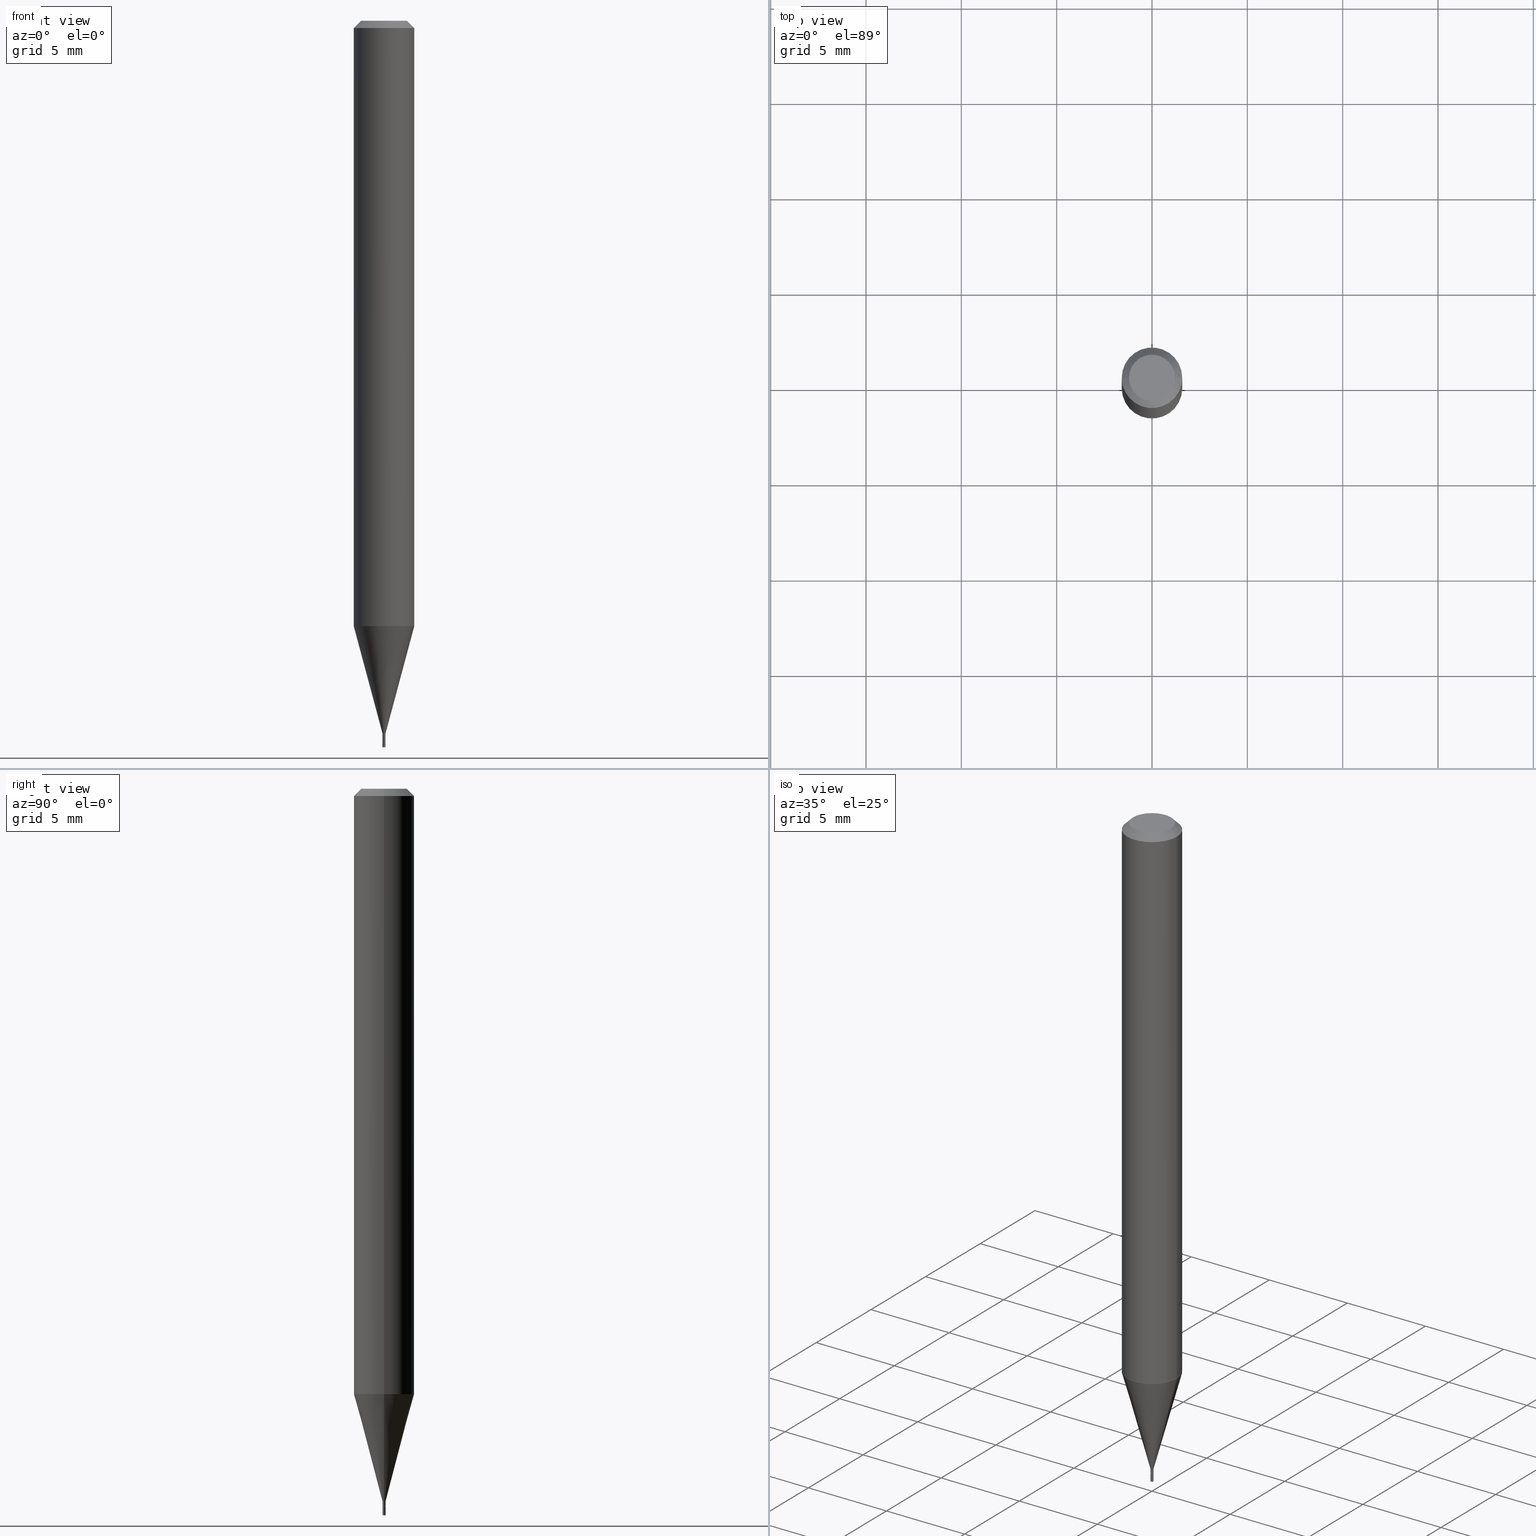
[diagram: canonical four-view strip — front | top / right | iso, engineering-drawing reading convention]
A machine part, canonical four-view strip (front | top / right | iso — engineering-drawing reading convention). The complete STEP part file that produces these views, byte-faithful:
ISO-10303-21;
HEADER;
FILE_DESCRIPTION (( 'STEP AP203' ),
    '1' );
FILE_NAME ('02276.STEP',
    '2024-03-18T19:59:50',
    ( '' ),
    ( '' ),
    'SwSTEP 2.0',
    'SolidWorks 2023',
    '' );
FILE_SCHEMA (( 'CONFIG_CONTROL_DESIGN' ));
ENDSEC;

DATA;
#1 = EDGE_LOOP ( 'NONE', ( #405, #168, #66, #163 ) ) ;
#2 = DIRECTION ( 'NONE',  ( -2.445468806185136597E-29, 3.491481338843145583E-15, 1.000000000000000000 ) ) ;
#3 = FACE_OUTER_BOUND ( 'NONE', #308, .T. ) ;
#4 = LOCAL_TIME ( 15, 59, 50.00000000000000000, #103 ) ;
#5 = CARTESIAN_POINT ( 'NONE',  ( 3.622962036363280209E-29, -5.172629603496120967E-15, -1.481500000000000261 ) ) ;
#6 = UNCERTAINTY_MEASURE_WITH_UNIT (LENGTH_MEASURE( 1.000000000000000082E-05 ), #167, 'distance_accuracy_value', 'NONE');
#7 = DIRECTION ( 'NONE',  ( -2.445468806185136597E-29, 3.491481338843145583E-15, 1.000000000000000000 ) ) ;
#8 = LINE ( 'NONE', #77, #256 ) ;
#9 = APPLICATION_CONTEXT ( 'configuration controlled 3d designs of mechanical parts and assemblies' ) ;
#10 = CC_DESIGN_PERSON_AND_ORGANIZATION_ASSIGNMENT ( #357, #68, ( #120 ) ) ;
#11 = EDGE_CURVE ( 'NONE', #344, #462, #376, .T. ) ;
#12 = ORIENTED_EDGE ( 'NONE', *, *, #11, .T. ) ;
#13 = PRODUCT ( '02276', '02276', '', ( #382 ) ) ;
#14 = CARTESIAN_POINT ( 'NONE',  ( 0.000000000000000000, 0.000000000000000000, 0.000000000000000000 ) ) ;
#15 = ORIENTED_EDGE ( 'NONE', *, *, #134, .F. ) ;
#16 = AXIS2_PLACEMENT_3D ( 'NONE', #187, #296, #111 ) ;
#17 = EDGE_CURVE ( 'NONE', #451, #407, #268, .T. ) ;
#18 = DIRECTION ( 'NONE',  ( 0.7071067811865645591, -2.468850131082435343E-15, 0.7071067811865304753 ) ) ;
#19 = AXIS2_PLACEMENT_3D ( 'NONE', #359, #230, #428 ) ;
#20 = ORIENTED_EDGE ( 'NONE', *, *, #153, .T. ) ;
#21 = DIRECTION ( 'NONE',  ( -0.7071067811864628627, 2.468850131081369986E-15, -0.7071067811866321717 ) ) ;
#22 = ORIENTED_EDGE ( 'NONE', *, *, #401, .T. ) ;
#23 = AXIS2_PLACEMENT_3D ( 'NONE', #14, #125, #164 ) ;
#24 = ADVANCED_FACE ( 'NONE', ( #455 ), #362, .T. ) ;
#25 = EDGE_LOOP ( 'NONE', ( #302, #61, #341, #94 ) ) ;
#26 = CALENDAR_DATE ( 2024, 18, 3 ) ;
#27 = CARTESIAN_POINT ( 'NONE',  ( -0.003000000000000000062, -5.184482394142328088E-15, -1.482000000000000206 ) ) ;
#28 = CC_DESIGN_PERSON_AND_ORGANIZATION_ASSIGNMENT ( #387, #390, ( #342 ) ) ;
#29 = PERSON_AND_ORGANIZATION ( #430, #420 ) ;
#30 = CARTESIAN_POINT ( 'NONE',  ( 0.002999999999999922434, -2.094888803305825853E-17, 1.462853032738742955E-31 ) ) ;
#31 = DIRECTION ( 'NONE',  ( 1.000000000000000000, 0.000000000000000000, 0.000000000000000000 ) ) ;
#32 = CARTESIAN_POINT ( 'NONE',  ( 3.624184770766373010E-29, -5.174375344165542471E-15, -1.482000000000000206 ) ) ;
#33 = APPROVAL_DATE_TIME ( #347, #220 ) ;
#34 = APPROVAL ( #133, 'UNSPECIFIED' ) ;
#35 = CYLINDRICAL_SURFACE ( 'NONE', #202, 0.002999999999999922434 ) ;
#36 = PERSON_AND_ORGANIZATION_ROLE ( 'creator' ) ;
#37 = DIRECTION ( 'NONE',  ( -0.7071067811865645591, 7.493145998870415691E-15, 0.7071067811865304753 ) ) ;
#38 = APPLICATION_CONTEXT ( 'configuration controlled 3d designs of mechanical parts and assemblies' ) ;
#39 = CC_DESIGN_APPROVAL ( #34, ( #120 ) ) ;
#40 = DIRECTION ( 'NONE',  ( -2.438088387897960049E-29, 3.491481338843145188E-15, 1.000000000000000000 ) ) ;
#41 = CARTESIAN_POINT ( 'NONE',  ( 3.624184770766373010E-29, -5.174375344165542471E-15, -1.482000000000000206 ) ) ;
#42 = AXIS2_PLACEMENT_3D ( 'NONE', #115, #261, #45 ) ;
#43 = CYLINDRICAL_SURFACE ( 'NONE', #19, 0.002999999999999922434 ) ;
#44 = AXIS2_PLACEMENT_3D ( 'NONE', #441, #408, #264 ) ;
#45 = DIRECTION ( 'NONE',  ( 1.000000000000000000, -6.982962677686266711E-15, 0.000000000000000000 ) ) ;
#46 = CARTESIAN_POINT ( 'NONE',  ( 3.624184770766373010E-29, -5.174375344165542471E-15, -1.482000000000000206 ) ) ;
#47 = EDGE_CURVE ( 'NONE', #272, #311, #346, .T. ) ;
#48 = AXIS2_PLACEMENT_3D ( 'NONE', #221, #425, #283 ) ;
#49 = ORIENTED_EDGE ( 'NONE', *, *, #423, .F. ) ;
#50 = DIRECTION ( 'NONE',  ( 1.000000000000000000, -6.982962677686266711E-15, 0.000000000000000000 ) ) ;
#51 = CC_DESIGN_APPROVAL ( #220, ( #112 ) ) ;
#52 = ORIENTED_EDGE ( 'NONE', *, *, #174, .F. ) ;
#53 = ORIENTED_EDGE ( 'NONE', *, *, #174, .T. ) ;
#54 = DIRECTION ( 'NONE',  ( 2.438088387897960049E-29, -3.491481338843145188E-15, -1.000000000000000000 ) ) ;
#55 = ORIENTED_EDGE ( 'NONE', *, *, #453, .T. ) ;
#56 = DIRECTION ( 'NONE',  ( 1.000000000000000000, -6.982962677686266711E-15, 4.876176775795935793E-29 ) ) ;
#57 = CIRCLE ( 'NONE', #377, 0.002999999999999922000 ) ;
#58 = ORIENTED_EDGE ( 'NONE', *, *, #117, .T. ) ;
#59 = ADVANCED_FACE ( 'NONE', ( #319 ), #422, .F. ) ;
#60 = AXIS2_PLACEMENT_3D ( 'NONE', #41, #7, #228 ) ;
#61 = ORIENTED_EDGE ( 'NONE', *, *, #95, .T. ) ;
#62 = ADVANCED_BREP_SHAPE_REPRESENTATION ( '02276', ( #100, #260, #214 ), #137 ) ;
#63 = CARTESIAN_POINT ( 'NONE',  ( 3.599730082704520905E-29, -5.139460530777110821E-15, -1.471999999999999975 ) ) ;
#64 = ORIENTED_EDGE ( 'NONE', *, *, #423, .T. ) ;
#65 = COORDINATED_UNIVERSAL_TIME_OFFSET ( 5, 0, .BEHIND. ) ;
#66 = ORIENTED_EDGE ( 'NONE', *, *, #275, .T. ) ;
#67 = ADVANCED_FACE ( 'NONE', ( #458 ), #35, .T. ) ;
#68 = PERSON_AND_ORGANIZATION_ROLE ( 'classification_officer' ) ;
#69 = DIRECTION ( 'NONE',  ( 2.438088387897960049E-29, -3.491481338843145188E-15, -1.000000000000000000 ) ) ;
#70 = APPLICATION_PROTOCOL_DEFINITION ( 'international standard', 'config_control_design', 1994, #9 ) ;
#71 = EDGE_LOOP ( 'NONE', ( #207, #270, #135, #233 ) ) ;
#72 = CC_DESIGN_PERSON_AND_ORGANIZATION_ASSIGNMENT ( #74, #316, ( #13 ) ) ;
#73 = CARTESIAN_POINT ( 'NONE',  ( -8.783475466943041190E-44, 1.254047510459085029E-29, 3.591734821858152800E-15 ) ) ;
#74 = PERSON_AND_ORGANIZATION ( #430, #420 ) ;
#75 = DIRECTION ( 'NONE',  ( -2.445468806185136877E-29, 3.491481338843145188E-15, 1.000000000000000000 ) ) ;
#76 = VECTOR ( 'NONE', #99, 39.37007874015748143 ) ;
#77 = CARTESIAN_POINT ( 'NONE',  ( 0.002999999999999922000, -5.160409418810168864E-15, -1.471999999999999975 ) ) ;
#78 = CARTESIAN_POINT ( 'NONE',  ( 0.003000000000000000062, -5.195324232198601302E-15, -1.482000000000000206 ) ) ;
#79 = FACE_OUTER_BOUND ( 'NONE', #448, .T. ) ;
#80 = AXIS2_PLACEMENT_3D ( 'NONE', #363, #324, #396 ) ;
#81 = DIRECTION ( 'NONE',  ( -2.445468806185136597E-29, 3.491481338843145583E-15, 1.000000000000000000 ) ) ;
#82 = EDGE_CURVE ( 'NONE', #272, #440, #338, .T. ) ;
#83 = LOCAL_TIME ( 15, 59, 50.00000000000000000, #106 ) ;
#84 = DIRECTION ( 'NONE',  ( 1.000000000000000000, -6.982962677686266711E-15, 4.876176775795935232E-29 ) ) ;
#85 = DIRECTION ( 'NONE',  ( -2.445468806185136597E-29, 3.491481338843145583E-15, 1.000000000000000000 ) ) ;
#86 = LINE ( 'NONE', #232, #291 ) ;
#87 = ORIENTED_EDGE ( 'NONE', *, *, #185, .F. ) ;
#88 = DIRECTION ( 'NONE',  ( -2.445468806185136597E-29, 3.491481338843145583E-15, 1.000000000000000000 ) ) ;
#89 = VERTEX_POINT ( 'NONE', #211 ) ;
#90 = ADVANCED_FACE ( 'NONE', ( #140 ), #417, .T. ) ;
#91 = CARTESIAN_POINT ( 'NONE',  ( -0.002999999999999922434, 2.131628207280245443E-17, -1.475680527076433653E-31 ) ) ;
#92 = ORIENTED_EDGE ( 'NONE', *, *, #348, .T. ) ;
#93 = VECTOR ( 'NONE', #37, 39.37007874015748143 ) ;
#94 = ORIENTED_EDGE ( 'NONE', *, *, #385, .F. ) ;
#95 = EDGE_CURVE ( 'NONE', #299, #409, #294, .T. ) ;
#96 = PERSON_AND_ORGANIZATION_ROLE ( 'creator' ) ;
#97 = VERTEX_POINT ( 'NONE', #27 ) ;
#98 = COORDINATED_UNIVERSAL_TIME_OFFSET ( 5, 0, .BEHIND. ) ;
#99 = DIRECTION ( 'NONE',  ( -2.445468806185136877E-29, 3.491481338843145188E-15, 1.000000000000000000 ) ) ;
#100 = MANIFOLD_SOLID_BREP ( 'Body-Move/Copy2[1]', #429 ) ;
#101 = DIRECTION ( 'NONE',  ( -1.000000000000000000, 6.982962677686265922E-15, -4.876176775795935793E-29 ) ) ;
#102 = AXIS2_PLACEMENT_3D ( 'NONE', #149, #2, #293 ) ;
#103 = COORDINATED_UNIVERSAL_TIME_OFFSET ( 5, 0, .BEHIND. ) ;
#104 = EDGE_LOOP ( 'NONE', ( #442, #371 ) ) ;
#105 = VECTOR ( 'NONE', #236, 39.37007874015748143 ) ;
#106 = COORDINATED_UNIVERSAL_TIME_OFFSET ( 5, 0, .BEHIND. ) ;
#107 = ADVANCED_FACE ( 'NONE', ( #178 ), #171, .T. ) ;
#108 = ORIENTED_EDGE ( 'NONE', *, *, #295, .T. ) ;
#109 = FACE_OUTER_BOUND ( 'NONE', #71, .T. ) ;
#110 = ADVANCED_FACE ( 'NONE', ( #109 ), #193, .T. ) ;
#111 = DIRECTION ( 'NONE',  ( 1.000000000000000000, -6.982962677686332186E-15, 0.000000000000000000 ) ) ;
#112 = PRODUCT_DEFINITION ( 'UNKNOWN', '', #342, #351 ) ;
#113 = PLANE ( 'NONE',  #203 ) ;
#114 = APPROVAL_PERSON_ORGANIZATION ( #213, #220, #412 ) ;
#115 = CARTESIAN_POINT ( 'NONE',  ( 3.668203209277705088E-31, -5.237222008264718399E-17, -0.01499999999999999944 ) ) ;
#116 = DIRECTION ( 'NONE',  ( 1.000000000000000000, -6.982962677686332186E-15, 0.000000000000000000 ) ) ;
#117 = EDGE_CURVE ( 'NONE', #380, #205, #245, .T. ) ;
#118 = VECTOR ( 'NONE', #292, 39.37007874015748143 ) ;
#119 = FACE_OUTER_BOUND ( 'NONE', #235, .T. ) ;
#120 = SECURITY_CLASSIFICATION ( '', '', #219 ) ;
#121 = CARTESIAN_POINT ( 'NONE',  ( -8.783475466943041190E-44, 1.254047510459085029E-29, 3.591734821858152800E-15 ) ) ;
#122 = CARTESIAN_POINT ( 'NONE',  ( 3.576687321579069994E-29, -5.368277968210015545E-15, -1.500000000000000222 ) ) ;
#123 = ORIENTED_EDGE ( 'NONE', *, *, #447, .F. ) ;
#124 = VECTOR ( 'NONE', #75, 39.37007874015748143 ) ;
#125 = DIRECTION ( 'NONE',  ( -2.445468806185136597E-29, 3.491481338843145583E-15, 1.000000000000000000 ) ) ;
#126 = ORIENTED_EDGE ( 'NONE', *, *, #138, .F. ) ;
#127 = EDGE_CURVE ( 'NONE', #462, #286, #173, .T. ) ;
#128 = CARTESIAN_POINT ( 'NONE',  ( 0.06250000000000000000, -4.800587745993150425E-15, -1.249942976949652174 ) ) ;
#129 = AXIS2_PLACEMENT_3D ( 'NONE', #162, #300, #410 ) ;
#130 = EDGE_LOOP ( 'NONE', ( #265, #55, #375, #126 ) ) ;
#131 = CARTESIAN_POINT ( 'NONE',  ( 3.668203209277705088E-31, -5.237222008264718399E-17, -0.01499999999999999944 ) ) ;
#132 = ORIENTED_EDGE ( 'NONE', *, *, #196, .T. ) ;
#133 = APPROVAL_STATUS ( 'not_yet_approved' ) ;
#134 = EDGE_CURVE ( 'NONE', #334, #205, #57, .T. ) ;
#135 = ORIENTED_EDGE ( 'NONE', *, *, #447, .T. ) ;
#136 = DIRECTION ( 'NONE',  ( 1.000000000000000000, -6.982962677686267499E-15, 5.108144071313017768E-29 ) ) ;
#137 =( GEOMETRIC_REPRESENTATION_CONTEXT ( 3 ) GLOBAL_UNCERTAINTY_ASSIGNED_CONTEXT ( ( #6 ) ) GLOBAL_UNIT_ASSIGNED_CONTEXT ( ( #167, #217, #241 ) ) REPRESENTATION_CONTEXT ( 'NONE', 'WORKASPACE' ) );
#138 = EDGE_CURVE ( 'NONE', #409, #89, #147, .T. ) ;
#139 = PERSON_AND_ORGANIZATION ( #430, #420 ) ;
#140 = FACE_OUTER_BOUND ( 'NONE', #337, .T. ) ;
#141 = CALENDAR_DATE ( 2024, 18, 3 ) ;
#142 = DIRECTION ( 'NONE',  ( -2.445468806185136597E-29, 3.491481338843145583E-15, 1.000000000000000000 ) ) ;
#143 = CIRCLE ( 'NONE', #42, 0.06250000000000000000 ) ;
#144 = APPROVAL_STATUS ( 'not_yet_approved' ) ;
#145 = DIRECTION ( 'NONE',  ( -2.445468806185136597E-29, 3.491481338843145583E-15, 1.000000000000000000 ) ) ;
#146 = CC_DESIGN_APPROVAL ( #345, ( #342 ) ) ;
#147 = LINE ( 'NONE', #383, #118 ) ;
#148 = ADVANCED_FACE ( 'NONE', ( #186 ), #113, .F. ) ;
#149 = CARTESIAN_POINT ( 'NONE',  ( 3.624184770766373010E-29, -5.174375344165542471E-15, -1.482000000000000206 ) ) ;
#150 = AXIS2_PLACEMENT_3D ( 'NONE', #73, #218, #136 ) ;
#151 = DIRECTION ( 'NONE',  ( 2.445468806185136597E-29, -3.491481338843145583E-15, -1.000000000000000000 ) ) ;
#152 = CARTESIAN_POINT ( 'NONE',  ( -0.003000000000000000062, 2.131628207280300602E-17, -1.475680527076471750E-31 ) ) ;
#153 = EDGE_CURVE ( 'NONE', #286, #380, #418, .T. ) ;
#154 = CARTESIAN_POINT ( 'NONE',  ( 0.06250000000000000000, -4.811533449433679005E-16, -0.01499999999999999944 ) ) ;
#155 = CLOSED_SHELL ( 'NONE', ( #188, #227, #263, #355, #360, #24, #431, #110, #59, #148, #90, #67 ) ) ;
#156 = CARTESIAN_POINT ( 'NONE',  ( -0.002999999999999922867, -5.151313321423318731E-15, -1.481500000000000261 ) ) ;
#157 = FACE_OUTER_BOUND ( 'NONE', #301, .T. ) ;
#158 = ORIENTED_EDGE ( 'NONE', *, *, #82, .T. ) ;
#159 = FACE_OUTER_BOUND ( 'NONE', #166, .T. ) ;
#160 = ORIENTED_EDGE ( 'NONE', *, *, #320, .F. ) ;
#161 = AXIS2_PLACEMENT_3D ( 'NONE', #189, #432, #84 ) ;
#162 = CARTESIAN_POINT ( 'NONE',  ( 3.599730082704520905E-29, -5.139460530777110821E-15, -1.471999999999999975 ) ) ;
#163 = ORIENTED_EDGE ( 'NONE', *, *, #95, .F. ) ;
#164 = DIRECTION ( 'NONE',  ( 1.000000000000000000, -6.982962677686266711E-15, 4.876176775795935793E-29 ) ) ;
#165 = VECTOR ( 'NONE', #274, 39.37007874015748143 ) ;
#166 = EDGE_LOOP ( 'NONE', ( #108, #132 ) ) ;
#167 =( CONVERSION_BASED_UNIT ( 'INCH', #367 ) LENGTH_UNIT ( ) NAMED_UNIT ( #393 ) );
#168 = ORIENTED_EDGE ( 'NONE', *, *, #134, .T. ) ;
#169 = DATE_AND_TIME ( #208, #206 ) ;
#170 = AXIS2_PLACEMENT_3D ( 'NONE', #242, #354, #287 ) ;
#171 = CYLINDRICAL_SURFACE ( 'NONE', #210, 0.003000000000000000062 ) ;
#172 = AXIS2_PLACEMENT_3D ( 'NONE', #131, #85, #50 ) ;
#173 = LINE ( 'NONE', #358, #93 ) ;
#174 = EDGE_CURVE ( 'NONE', #440, #97, #397, .T. ) ;
#175 = PERSON_AND_ORGANIZATION ( #430, #420 ) ;
#176 = DIRECTION ( 'NONE',  ( 1.000000000000000000, -6.982962677686138915E-15, 0.000000000000000000 ) ) ;
#177 = APPROVAL_ROLE ( '' ) ;
#178 = FACE_OUTER_BOUND ( 'NONE', #352, .T. ) ;
#179 = AXIS2_PLACEMENT_3D ( 'NONE', #252, #279, #392 ) ;
#180 = CIRCLE ( 'NONE', #60, 0.002500000000000000052 ) ;
#181 = ORIENTED_EDGE ( 'NONE', *, *, #127, .T. ) ;
#182 = CARTESIAN_POINT ( 'NONE',  ( 3.599730082704520905E-29, -5.139460530777110821E-15, -1.471999999999999975 ) ) ;
#183 = EDGE_CURVE ( 'NONE', #334, #299, #427, .T. ) ;
#184 = LOCAL_TIME ( 15, 59, 50.00000000000000000, #310 ) ;
#185 = EDGE_CURVE ( 'NONE', #462, #344, #180, .T. ) ;
#186 = FACE_OUTER_BOUND ( 'NONE', #199, .T. ) ;
#187 = CARTESIAN_POINT ( 'NONE',  ( 3.624184770766373010E-29, -5.174375344165542471E-15, -1.482000000000000206 ) ) ;
#188 = ADVANCED_FACE ( 'NONE', ( #399 ), #43, .T. ) ;
#189 = CARTESIAN_POINT ( 'NONE',  ( 0.000000000000000000, 0.000000000000000000, 0.000000000000000000 ) ) ;
#190 = AXIS2_PLACEMENT_3D ( 'NONE', #438, #54, #436 ) ;
#191 = CARTESIAN_POINT ( 'NONE',  ( -0.002999999999999922000, -5.118144248704308586E-15, -1.471999999999999975 ) ) ;
#192 = DIRECTION ( 'NONE',  ( -2.445468806185136597E-29, 3.491481338843145583E-15, 1.000000000000000000 ) ) ;
#193 = CONICAL_SURFACE ( 'NONE', #179, 0.06250000000000000000, 0.7853981633973285970 ) ;
#194 = CARTESIAN_POINT ( 'NONE',  ( 0.002999999999999922867, -5.193578491529179010E-15, -1.481500000000000261 ) ) ;
#195 = ORIENTED_EDGE ( 'NONE', *, *, #185, .T. ) ;
#196 = EDGE_CURVE ( 'NONE', #97, #311, #282, .T. ) ;
#197 = CC_DESIGN_SECURITY_CLASSIFICATION ( #120, ( #342 ) ) ;
#198 = CARTESIAN_POINT ( 'NONE',  ( 0.04749999999999999362, -4.035134999187516007E-16, 3.591734821858155166E-15 ) ) ;
#199 = EDGE_LOOP ( 'NONE', ( #276, #87 ) ) ;
#200 = DIRECTION ( 'NONE',  ( 1.000000000000000000, -6.982962677686267499E-15, 5.108144071313017768E-29 ) ) ;
#201 = ORIENTED_EDGE ( 'NONE', *, *, #47, .T. ) ;
#202 = AXIS2_PLACEMENT_3D ( 'NONE', #389, #247, #419 ) ;
#203 = AXIS2_PLACEMENT_3D ( 'NONE', #325, #40, #328 ) ;
#204 = DIRECTION ( 'NONE',  ( -2.445468806185136597E-29, 3.491481338843145583E-15, 1.000000000000000000 ) ) ;
#205 = VERTEX_POINT ( 'NONE', #364 ) ;
#206 = LOCAL_TIME ( 15, 59, 50.00000000000000000, #65 ) ;
#207 = ORIENTED_EDGE ( 'NONE', *, *, #216, .F. ) ;
#208 = CALENDAR_DATE ( 2024, 18, 3 ) ;
#209 = CARTESIAN_POINT ( 'NONE',  ( 3.624184770766373010E-29, -5.174375344165542471E-15, -1.482000000000000206 ) ) ;
#210 = AXIS2_PLACEMENT_3D ( 'NONE', #280, #145, #313 ) ;
#211 = CARTESIAN_POINT ( 'NONE',  ( 0.06250000000000000000, -4.888073874380388472E-16, -0.01499999999999999944 ) ) ;
#212 = EDGE_CURVE ( 'NONE', #409, #299, #259, .T. ) ;
#213 = PERSON_AND_ORGANIZATION ( #430, #420 ) ;
#214 = AXIS2_PLACEMENT_3D ( 'NONE', #457, #314, #31 ) ;
#215 = DIRECTION ( 'NONE',  ( 1.000000000000000000, -6.982962677686332186E-15, 0.000000000000000000 ) ) ;
#216 = EDGE_CURVE ( 'NONE', #451, #89, #290, .T. ) ;
#217 =( NAMED_UNIT ( * ) PLANE_ANGLE_UNIT ( ) SI_UNIT ( $, .RADIAN. ) );
#218 = DIRECTION ( 'NONE',  ( -2.445468806185136597E-29, 3.491481338843145583E-15, 1.000000000000000000 ) ) ;
#219 = SECURITY_CLASSIFICATION_LEVEL ( 'unclassified' ) ;
#220 = APPROVAL ( #246, 'UNSPECIFIED' ) ;
#221 = CARTESIAN_POINT ( 'NONE',  ( 3.056696559640561437E-29, -4.364152578637758755E-15, -1.249942976949652174 ) ) ;
#222 = DIRECTION ( 'NONE',  ( -2.445468806185136877E-29, 3.491481338843145188E-15, 1.000000000000000000 ) ) ;
#223 = DIRECTION ( 'NONE',  ( -2.445468806185136597E-29, 3.491481338843145583E-15, 1.000000000000000000 ) ) ;
#224 = DIRECTION ( 'NONE',  ( 0.7071067811864628627, -7.319954787622970478E-15, -0.7071067811866321717 ) ) ;
#225 = VECTOR ( 'NONE', #222, 39.37007874015748143 ) ;
#226 = EDGE_CURVE ( 'NONE', #89, #305, #143, .T. ) ;
#227 = ADVANCED_FACE ( 'NONE', ( #79 ), #303, .T. ) ;
#228 = DIRECTION ( 'NONE',  ( 1.000000000000000000, -6.982962677686138915E-15, 0.000000000000000000 ) ) ;
#229 = ADVANCED_FACE ( 'NONE', ( #3 ), #257, .T. ) ;
#230 = DIRECTION ( 'NONE',  ( -2.445468806185136597E-29, 3.491481338843145583E-15, 1.000000000000000000 ) ) ;
#231 = CARTESIAN_POINT ( 'NONE',  ( -0.002500000000000000052, -5.153962548597429932E-15, -1.482000000000000206 ) ) ;
#232 = CARTESIAN_POINT ( 'NONE',  ( -0.06250000000000000000, 3.840629472727444916E-16, -0.01499999999999999944 ) ) ;
#233 = ORIENTED_EDGE ( 'NONE', *, *, #385, .T. ) ;
#234 = DIRECTION ( 'NONE',  ( -2.438088387897960049E-29, 3.491481338843145188E-15, 1.000000000000000000 ) ) ;
#235 = EDGE_LOOP ( 'NONE', ( #239, #445, #331, #123 ) ) ;
#236 = DIRECTION ( 'NONE',  ( -2.445468806185136877E-29, 3.491481338843145188E-15, 1.000000000000000000 ) ) ;
#237 = ORIENTED_EDGE ( 'NONE', *, *, #47, .F. ) ;
#238 = PLANE ( 'NONE',  #190 ) ;
#239 = ORIENTED_EDGE ( 'NONE', *, *, #17, .F. ) ;
#240 = ORIENTED_EDGE ( 'NONE', *, *, #320, .T. ) ;
#241 =( NAMED_UNIT ( * ) SI_UNIT ( $, .STERADIAN. ) SOLID_ANGLE_UNIT ( ) );
#242 = CARTESIAN_POINT ( 'NONE',  ( 3.599730082704520905E-29, -5.139460530777110821E-15, -1.471999999999999975 ) ) ;
#243 = DATE_AND_TIME ( #446, #184 ) ;
#244 = ORIENTED_EDGE ( 'NONE', *, *, #348, .F. ) ;
#245 = LINE ( 'NONE', #30, #124 ) ;
#246 = APPROVAL_STATUS ( 'not_yet_approved' ) ;
#247 = DIRECTION ( 'NONE',  ( -2.445468806185136597E-29, 3.491481338843145583E-15, 1.000000000000000000 ) ) ;
#248 = DATE_AND_TIME ( #141, #4 ) ;
#249 = AXIS2_PLACEMENT_3D ( 'NONE', #122, #234, #372 ) ;
#250 = EDGE_LOOP ( 'NONE', ( #22, #465 ) ) ;
#251 = CC_DESIGN_DATE_AND_TIME_ASSIGNMENT ( #248, #454, ( #112 ) ) ;
#252 = CARTESIAN_POINT ( 'NONE',  ( 3.668203209277705088E-31, -5.237222008264718399E-17, -0.01499999999999999944 ) ) ;
#253 = CARTESIAN_POINT ( 'NONE',  ( 3.668203209277704895E-29, -5.237222008264718177E-15, -1.500000000000000222 ) ) ;
#254 = EDGE_CURVE ( 'NONE', #440, #272, #398, .T. ) ;
#255 = DIRECTION ( 'NONE',  ( 0.2588190451025213501, 1.565188264969621968E-15, 0.9659258262890682012 ) ) ;
#256 = VECTOR ( 'NONE', #255, 39.37007874015747433 ) ;
#257 = CYLINDRICAL_SURFACE ( 'NONE', #161, 0.003000000000000000062 ) ;
#258 = DIRECTION ( 'NONE',  ( 1.000000000000000000, -6.982962677686188613E-15, 0.000000000000000000 ) ) ;
#259 = CIRCLE ( 'NONE', #80, 0.06250000000000000000 ) ;
#260 = MANIFOLD_SOLID_BREP ( 'Body-Move/Copy2[2]', #155 ) ;
#261 = DIRECTION ( 'NONE',  ( -2.445468806185136597E-29, 3.491481338843145583E-15, 1.000000000000000000 ) ) ;
#262 = AXIS2_PLACEMENT_3D ( 'NONE', #63, #88, #269 ) ;
#263 = ADVANCED_FACE ( 'NONE', ( #119 ), #273, .T. ) ;
#264 = DIRECTION ( 'NONE',  ( 1.000000000000000000, -6.982962677686188613E-15, 0.000000000000000000 ) ) ;
#265 = ORIENTED_EDGE ( 'NONE', *, *, #212, .T. ) ;
#266 = EDGE_LOOP ( 'NONE', ( #64, #413, #244, #373 ) ) ;
#267 = PRODUCT_DEFINITION_SHAPE ( 'NONE', 'NONE',  #112 ) ;
#268 = CIRCLE ( 'NONE', #150, 0.04749999999999999362 ) ;
#269 = DIRECTION ( 'NONE',  ( 1.000000000000000000, -6.982962677686190980E-15, 0.000000000000000000 ) ) ;
#270 = ORIENTED_EDGE ( 'NONE', *, *, #401, .F. ) ;
#271 = CARTESIAN_POINT ( 'NONE',  ( -0.002999999999999922000, -4.519103808746002757E-15, -1.471999999999999975 ) ) ;
#272 = VERTEX_POINT ( 'NONE', #426 ) ;
#273 = CONICAL_SURFACE ( 'NONE', #298, 0.06250000000000000000, 0.7853981633973285970 ) ;
#274 = DIRECTION ( 'NONE',  ( -2.445468806185136877E-29, 3.491481338843145188E-15, 1.000000000000000000 ) ) ;
#275 = EDGE_CURVE ( 'NONE', #205, #409, #8, .T. ) ;
#276 = ORIENTED_EDGE ( 'NONE', *, *, #11, .F. ) ;
#277 = ORIENTED_EDGE ( 'NONE', *, *, #127, .F. ) ;
#278 = CC_DESIGN_DATE_AND_TIME_ASSIGNMENT ( #243, #461, ( #120 ) ) ;
#279 = DIRECTION ( 'NONE',  ( 2.445468806185136597E-29, -3.491481338843145583E-15, -1.000000000000000000 ) ) ;
#280 = CARTESIAN_POINT ( 'NONE',  ( 0.000000000000000000, 0.000000000000000000, 0.000000000000000000 ) ) ;
#281 = AXIS2_PLACEMENT_3D ( 'NONE', #414, #69, #101 ) ;
#282 = CIRCLE ( 'NONE', #433, 0.003000000000000000062 ) ;
#283 = DIRECTION ( 'NONE',  ( 1.000000000000000000, -6.982962677686270655E-15, 0.000000000000000000 ) ) ;
#284 = CC_DESIGN_PERSON_AND_ORGANIZATION_ASSIGNMENT ( #29, #36, ( #342 ) ) ;
#285 = APPROVAL_ROLE ( '' ) ;
#286 = VERTEX_POINT ( 'NONE', #156 ) ;
#287 = DIRECTION ( 'NONE',  ( 1.000000000000000000, -6.982962677686190980E-15, 0.000000000000000000 ) ) ;
#288 = DIRECTION ( 'NONE',  ( -2.445468806185136597E-29, 3.491481338843145583E-15, 1.000000000000000000 ) ) ;
#289 = DIRECTION ( 'NONE',  ( -1.000000000000000000, 6.982962677686266711E-15, 0.000000000000000000 ) ) ;
#290 = LINE ( 'NONE', #154, #339 ) ;
#291 = VECTOR ( 'NONE', #21, 39.37007874015748143 ) ;
#292 = DIRECTION ( 'NONE',  ( -2.445468806185136877E-29, 3.491481338843145188E-15, 1.000000000000000000 ) ) ;
#293 = DIRECTION ( 'NONE',  ( 1.000000000000000000, -6.982962677686138915E-15, 0.000000000000000000 ) ) ;
#294 = CIRCLE ( 'NONE', #48, 0.06250000000000000000 ) ;
#295 = EDGE_CURVE ( 'NONE', #311, #97, #456, .T. ) ;
#296 = DIRECTION ( 'NONE',  ( -2.445468806185136597E-29, 3.491481338843145583E-15, 1.000000000000000000 ) ) ;
#297 = PLANE ( 'NONE',  #249 ) ;
#298 = AXIS2_PLACEMENT_3D ( 'NONE', #329, #151, #289 ) ;
#299 = VERTEX_POINT ( 'NONE', #395 ) ;
#300 = DIRECTION ( 'NONE',  ( -2.445468806185136597E-29, 3.491481338843145583E-15, 1.000000000000000000 ) ) ;
#301 = EDGE_LOOP ( 'NONE', ( #92, #322, #309, #391 ) ) ;
#302 = ORIENTED_EDGE ( 'NONE', *, *, #453, .F. ) ;
#303 = CONICAL_SURFACE ( 'NONE', #102, 0.002500000000000000052, 0.7853981633974723708 ) ;
#304 = FACE_OUTER_BOUND ( 'NONE', #104, .T. ) ;
#305 = VERTEX_POINT ( 'NONE', #326 ) ;
#306 = AXIS2_PLACEMENT_3D ( 'NONE', #121, #434, #200 ) ;
#307 = LINE ( 'NONE', #444, #165 ) ;
#308 = EDGE_LOOP ( 'NONE', ( #52, #437, #201, #369 ) ) ;
#309 = ORIENTED_EDGE ( 'NONE', *, *, #212, .F. ) ;
#310 = COORDINATED_UNIVERSAL_TIME_OFFSET ( 5, 0, .BEHIND. ) ;
#311 = VERTEX_POINT ( 'NONE', #78 ) ;
#312 = SHAPE_DEFINITION_REPRESENTATION ( #267, #62 ) ;
#313 = DIRECTION ( 'NONE',  ( 1.000000000000000000, -6.982962677686266711E-15, 4.876176775795935232E-29 ) ) ;
#314 = DIRECTION ( 'NONE',  ( 0.000000000000000000, 0.000000000000000000, 1.000000000000000000 ) ) ;
#315 = CARTESIAN_POINT ( 'NONE',  ( 0.003000000000000000062, -2.094888803305880087E-17, 1.462853032738780615E-31 ) ) ;
#316 = PERSON_AND_ORGANIZATION_ROLE ( 'design_owner' ) ;
#317 = ORIENTED_EDGE ( 'NONE', *, *, #295, .F. ) ;
#318 = APPROVAL_DATE_TIME ( #415, #345 ) ;
#319 = FACE_OUTER_BOUND ( 'NONE', #250, .T. ) ;
#320 = EDGE_CURVE ( 'NONE', #344, #380, #361, .T. ) ;
#321 = APPROVAL_PERSON_ORGANIZATION ( #139, #345, #177 ) ;
#322 = ORIENTED_EDGE ( 'NONE', *, *, #183, .T. ) ;
#323 = DIRECTION ( 'NONE',  ( -2.445468806185136597E-29, 3.491481338843145583E-15, 1.000000000000000000 ) ) ;
#324 = DIRECTION ( 'NONE',  ( -2.445468806185136597E-29, 3.491481338843145583E-15, 1.000000000000000000 ) ) ;
#325 = CARTESIAN_POINT ( 'NONE',  ( 3.624184770766373010E-29, -5.174375344165542471E-15, -1.482000000000000206 ) ) ;
#326 = CARTESIAN_POINT ( 'NONE',  ( -0.06250000000000000000, -1.764173189510140301E-15, -0.01499999999999999944 ) ) ;
#327 = VECTOR ( 'NONE', #18, 39.37007874015748143 ) ;
#328 = DIRECTION ( 'NONE',  ( 1.000000000000000000, -6.982962677686265922E-15, 4.876176775795935793E-29 ) ) ;
#329 = CARTESIAN_POINT ( 'NONE',  ( 3.668203209277705088E-31, -5.237222008264718399E-17, -0.01499999999999999944 ) ) ;
#330 = CYLINDRICAL_SURFACE ( 'NONE', #365, 0.06250000000000000000 ) ;
#331 = ORIENTED_EDGE ( 'NONE', *, *, #226, .T. ) ;
#332 = CONICAL_SURFACE ( 'NONE', #262, 0.002999999999999922000, 0.2617993877991500740 ) ;
#333 = FACE_OUTER_BOUND ( 'NONE', #130, .T. ) ;
#334 = VERTEX_POINT ( 'NONE', #271 ) ;
#335 = ADVANCED_FACE ( 'NONE', ( #159 ), #238, .F. ) ;
#336 = CYLINDRICAL_SURFACE ( 'NONE', #23, 0.06250000000000000000 ) ;
#337 = EDGE_LOOP ( 'NONE', ( #277, #195, #240, #349 ) ) ;
#338 = CIRCLE ( 'NONE', #356, 0.003000000000000000062 ) ;
#339 = VECTOR ( 'NONE', #224, 39.37007874015748143 ) ;
#340 = CARTESIAN_POINT ( 'NONE',  ( -0.003000000000000000062, -5.184482394142328088E-15, -1.500000000000000222 ) ) ;
#341 = ORIENTED_EDGE ( 'NONE', *, *, #138, .T. ) ;
#342 = PRODUCT_DEFINITION_FORMATION_WITH_SPECIFIED_SOURCE ( 'ANY', '', #13, .NOT_KNOWN. ) ;
#343 =( LENGTH_UNIT ( ) NAMED_UNIT ( * ) SI_UNIT ( $, .METRE. ) );
#344 = VERTEX_POINT ( 'NONE', #406 ) ;
#345 = APPROVAL ( #144, 'UNSPECIFIED' ) ;
#346 = LINE ( 'NONE', #315, #76 ) ;
#347 = DATE_AND_TIME ( #350, #83 ) ;
#348 = EDGE_CURVE ( 'NONE', #205, #334, #435, .T. ) ;
#349 = ORIENTED_EDGE ( 'NONE', *, *, #153, .F. ) ;
#350 = CALENDAR_DATE ( 2024, 18, 3 ) ;
#351 = DESIGN_CONTEXT ( 'detailed design', #38, 'design' ) ;
#352 = EDGE_LOOP ( 'NONE', ( #158, #53, #317, #237 ) ) ;
#353 = APPLICATION_PROTOCOL_DEFINITION ( 'international standard', 'config_control_design', 1994, #38 ) ;
#354 = DIRECTION ( 'NONE',  ( -2.445468806185136597E-29, 3.491481338843145583E-15, 1.000000000000000000 ) ) ;
#355 = ADVANCED_FACE ( 'NONE', ( #333 ), #336, .T. ) ;
#356 = AXIS2_PLACEMENT_3D ( 'NONE', #388, #416, #215 ) ;
#357 = PERSON_AND_ORGANIZATION ( #430, #420 ) ;
#358 = CARTESIAN_POINT ( 'NONE',  ( -0.002500000000000000052, -5.156611775771539556E-15, -1.482000000000000206 ) ) ;
#359 = CARTESIAN_POINT ( 'NONE',  ( 0.000000000000000000, 0.000000000000000000, 0.000000000000000000 ) ) ;
#360 = ADVANCED_FACE ( 'NONE', ( #157 ), #332, .T. ) ;
#361 = LINE ( 'NONE', #379, #327 ) ;
#362 = CONICAL_SURFACE ( 'NONE', #170, 0.002999999999999922000, 0.2617993877991500740 ) ;
#363 = CARTESIAN_POINT ( 'NONE',  ( 3.056696559640561437E-29, -4.364152578637758755E-15, -1.249942976949652174 ) ) ;
#364 = CARTESIAN_POINT ( 'NONE',  ( 0.002999999999999922000, -5.160409418810168864E-15, -1.471999999999999975 ) ) ;
#365 = AXIS2_PLACEMENT_3D ( 'NONE', #374, #204, #56 ) ;
#366 = DIRECTION ( 'NONE',  ( -0.2588190451025213501, 5.211531920934551042E-15, 0.9659258262890682012 ) ) ;
#367 = LENGTH_MEASURE_WITH_UNIT ( LENGTH_MEASURE( 0.02539999999999999897 ), #343 );
#368 = AXIS2_PLACEMENT_3D ( 'NONE', #209, #288, #386 ) ;
#369 = ORIENTED_EDGE ( 'NONE', *, *, #196, .F. ) ;
#370 = LINE ( 'NONE', #91, #105 ) ;
#371 = ORIENTED_EDGE ( 'NONE', *, *, #254, .F. ) ;
#372 = DIRECTION ( 'NONE',  ( 1.000000000000000000, -6.982962677686265922E-15, 4.876176775795935793E-29 ) ) ;
#373 = ORIENTED_EDGE ( 'NONE', *, *, #117, .F. ) ;
#374 = CARTESIAN_POINT ( 'NONE',  ( 0.000000000000000000, 0.000000000000000000, 0.000000000000000000 ) ) ;
#375 = ORIENTED_EDGE ( 'NONE', *, *, #226, .F. ) ;
#376 = CIRCLE ( 'NONE', #368, 0.002500000000000000052 ) ;
#377 = AXIS2_PLACEMENT_3D ( 'NONE', #182, #323, #466 ) ;
#378 = ADVANCED_FACE ( 'NONE', ( #304 ), #297, .F. ) ;
#379 = CARTESIAN_POINT ( 'NONE',  ( 0.002500000000000000052, -5.191832750859757506E-15, -1.482000000000000206 ) ) ;
#380 = VERTEX_POINT ( 'NONE', #194 ) ;
#381 = CIRCLE ( 'NONE', #172, 0.06250000000000000000 ) ;
#382 = MECHANICAL_CONTEXT ( 'NONE', #9, 'mechanical' ) ;
#383 = CARTESIAN_POINT ( 'NONE',  ( 0.06250000000000000000, -4.364351673553916694E-16, 3.047610484872459871E-30 ) ) ;
#384 = APPROVAL_DATE_TIME ( #169, #34 ) ;
#385 = EDGE_CURVE ( 'NONE', #305, #89, #381, .T. ) ;
#386 = DIRECTION ( 'NONE',  ( 1.000000000000000000, -6.982962677686138915E-15, 0.000000000000000000 ) ) ;
#387 = PERSON_AND_ORGANIZATION ( #430, #420 ) ;
#388 = CARTESIAN_POINT ( 'NONE',  ( 3.668203209277704895E-29, -5.237222008264718177E-15, -1.500000000000000222 ) ) ;
#389 = CARTESIAN_POINT ( 'NONE',  ( 0.000000000000000000, 0.000000000000000000, 0.000000000000000000 ) ) ;
#390 = PERSON_AND_ORGANIZATION_ROLE ( 'design_supplier' ) ;
#391 = ORIENTED_EDGE ( 'NONE', *, *, #275, .F. ) ;
#392 = DIRECTION ( 'NONE',  ( -1.000000000000000000, 6.982962677686266711E-15, 0.000000000000000000 ) ) ;
#393 = DIMENSIONAL_EXPONENTS ( 1.000000000000000000, 0.000000000000000000, 0.000000000000000000, 0.000000000000000000, 0.000000000000000000, 0.000000000000000000, 0.000000000000000000 ) ;
#394 = DIRECTION ( 'NONE',  ( 1.000000000000000000, -6.982962677686332186E-15, 0.000000000000000000 ) ) ;
#395 = CARTESIAN_POINT ( 'NONE',  ( -0.06250000000000000000, -3.920063368787695350E-15, -1.249942976949652174 ) ) ;
#396 = DIRECTION ( 'NONE',  ( 1.000000000000000000, -6.982962677686270655E-15, 0.000000000000000000 ) ) ;
#397 = LINE ( 'NONE', #152, #225 ) ;
#398 = CIRCLE ( 'NONE', #449, 0.003000000000000000062 ) ;
#399 = FACE_OUTER_BOUND ( 'NONE', #266, .T. ) ;
#400 = APPROVAL_PERSON_ORGANIZATION ( #175, #34, #285 ) ;
#401 = EDGE_CURVE ( 'NONE', #407, #451, #443, .T. ) ;
#402 = CARTESIAN_POINT ( 'NONE',  ( -0.04749999999999999362, 3.578768372314273615E-16, 3.591734821858150433E-15 ) ) ;
#403 = FACE_OUTER_BOUND ( 'NONE', #25, .T. ) ;
#404 = PRODUCT_RELATED_PRODUCT_CATEGORY ( 'detail', '', ( #13 ) ) ;
#405 = ORIENTED_EDGE ( 'NONE', *, *, #183, .F. ) ;
#406 = CARTESIAN_POINT ( 'NONE',  ( 0.002500000000000000052, -5.191832750859757506E-15, -1.482000000000000206 ) ) ;
#407 = VERTEX_POINT ( 'NONE', #402 ) ;
#408 = DIRECTION ( 'NONE',  ( -2.445468806185136597E-29, 3.491481338843145583E-15, 1.000000000000000000 ) ) ;
#409 = VERTEX_POINT ( 'NONE', #128 ) ;
#410 = DIRECTION ( 'NONE',  ( 1.000000000000000000, -6.982962677686190980E-15, 0.000000000000000000 ) ) ;
#411 = EDGE_LOOP ( 'NONE', ( #421, #20, #58, #15 ) ) ;
#412 = APPROVAL_ROLE ( '' ) ;
#413 = ORIENTED_EDGE ( 'NONE', *, *, #424, .T. ) ;
#414 = CARTESIAN_POINT ( 'NONE',  ( 3.316907271900976096E-16, 0.04749999999999999362, 1.630022047334026855E-15 ) ) ;
#415 = DATE_AND_TIME ( #26, #452 ) ;
#416 = DIRECTION ( 'NONE',  ( -2.445468806185136597E-29, 3.491481338843145583E-15, 1.000000000000000000 ) ) ;
#417 = CONICAL_SURFACE ( 'NONE', #459, 0.002500000000000000052, 0.7853981633974723708 ) ;
#418 = CIRCLE ( 'NONE', #439, 0.002999999999999922867 ) ;
#419 = DIRECTION ( 'NONE',  ( 1.000000000000000000, -6.982962677686266711E-15, 4.876176775795935793E-29 ) ) ;
#420 = ORGANIZATION ( 'UNSPECIFIED', 'UNSPECIFIED', '' ) ;
#421 = ORIENTED_EDGE ( 'NONE', *, *, #424, .F. ) ;
#422 = PLANE ( 'NONE',  #281 ) ;
#423 = EDGE_CURVE ( 'NONE', #380, #286, #464, .T. ) ;
#424 = EDGE_CURVE ( 'NONE', #286, #334, #370, .T. ) ;
#425 = DIRECTION ( 'NONE',  ( -2.445468806185136597E-29, 3.491481338843145583E-15, 1.000000000000000000 ) ) ;
#426 = CARTESIAN_POINT ( 'NONE',  ( 0.003000000000000000062, -5.258170896297777797E-15, -1.500000000000000222 ) ) ;
#427 = LINE ( 'NONE', #191, #460 ) ;
#428 = DIRECTION ( 'NONE',  ( 1.000000000000000000, -6.982962677686266711E-15, 4.876176775795935793E-29 ) ) ;
#429 = CLOSED_SHELL ( 'NONE', ( #107, #378, #229, #335 ) ) ;
#430 = PERSON ( 'UNSPECIFIED', 'UNSPECIFIED', 'UNSPECIFIED', ('UNSPECIFIED'), ('UNSPECIFIED'), ('UNSPECIFIED') ) ;
#431 = ADVANCED_FACE ( 'NONE', ( #403 ), #330, .T. ) ;
#432 = DIRECTION ( 'NONE',  ( -2.445468806185136597E-29, 3.491481338843145583E-15, 1.000000000000000000 ) ) ;
#433 = AXIS2_PLACEMENT_3D ( 'NONE', #46, #192, #116 ) ;
#434 = DIRECTION ( 'NONE',  ( -2.445468806185136597E-29, 3.491481338843145583E-15, 1.000000000000000000 ) ) ;
#435 = CIRCLE ( 'NONE', #129, 0.002999999999999922000 ) ;
#436 = DIRECTION ( 'NONE',  ( -1.000000000000000000, 6.982962677686265922E-15, -4.876176775795935793E-29 ) ) ;
#437 = ORIENTED_EDGE ( 'NONE', *, *, #254, .T. ) ;
#438 = CARTESIAN_POINT ( 'NONE',  ( 2.094888803309503609E-17, 0.002999999999994825382, -1.482000000000000206 ) ) ;
#439 = AXIS2_PLACEMENT_3D ( 'NONE', #5, #81, #258 ) ;
#440 = VERTEX_POINT ( 'NONE', #340 ) ;
#441 = CARTESIAN_POINT ( 'NONE',  ( 3.622962036363280209E-29, -5.172629603496120967E-15, -1.481500000000000261 ) ) ;
#442 = ORIENTED_EDGE ( 'NONE', *, *, #82, .F. ) ;
#443 = CIRCLE ( 'NONE', #306, 0.04749999999999999362 ) ;
#444 = CARTESIAN_POINT ( 'NONE',  ( -0.06250000000000000000, 4.440892098500626162E-16, -3.074334431409316114E-30 ) ) ;
#445 = ORIENTED_EDGE ( 'NONE', *, *, #216, .T. ) ;
#446 = CALENDAR_DATE ( 2024, 18, 3 ) ;
#447 = EDGE_CURVE ( 'NONE', #407, #305, #86, .T. ) ;
#448 = EDGE_LOOP ( 'NONE', ( #12, #181, #49, #160 ) ) ;
#449 = AXIS2_PLACEMENT_3D ( 'NONE', #253, #223, #394 ) ;
#450 = PERSON_AND_ORGANIZATION ( #430, #420 ) ;
#451 = VERTEX_POINT ( 'NONE', #198 ) ;
#452 = LOCAL_TIME ( 15, 59, 50.00000000000000000, #98 ) ;
#453 = EDGE_CURVE ( 'NONE', #299, #305, #307, .T. ) ;
#454 = DATE_TIME_ROLE ( 'creation_date' ) ;
#455 = FACE_OUTER_BOUND ( 'NONE', #1, .T. ) ;
#456 = CIRCLE ( 'NONE', #16, 0.003000000000000000062 ) ;
#457 = CARTESIAN_POINT ( 'NONE',  ( 0.000000000000000000, 0.000000000000000000, 0.000000000000000000 ) ) ;
#458 = FACE_OUTER_BOUND ( 'NONE', #411, .T. ) ;
#459 = AXIS2_PLACEMENT_3D ( 'NONE', #32, #142, #176 ) ;
#460 = VECTOR ( 'NONE', #366, 39.37007874015747433 ) ;
#461 = DATE_TIME_ROLE ( 'classification_date' ) ;
#462 = VERTEX_POINT ( 'NONE', #231 ) ;
#463 = CC_DESIGN_PERSON_AND_ORGANIZATION_ASSIGNMENT ( #450, #96, ( #112 ) ) ;
#464 = CIRCLE ( 'NONE', #44, 0.002999999999999922867 ) ;
#465 = ORIENTED_EDGE ( 'NONE', *, *, #17, .T. ) ;
#466 = DIRECTION ( 'NONE',  ( 1.000000000000000000, -6.982962677686190980E-15, 0.000000000000000000 ) ) ;
ENDSEC;
END-ISO-10303-21;
